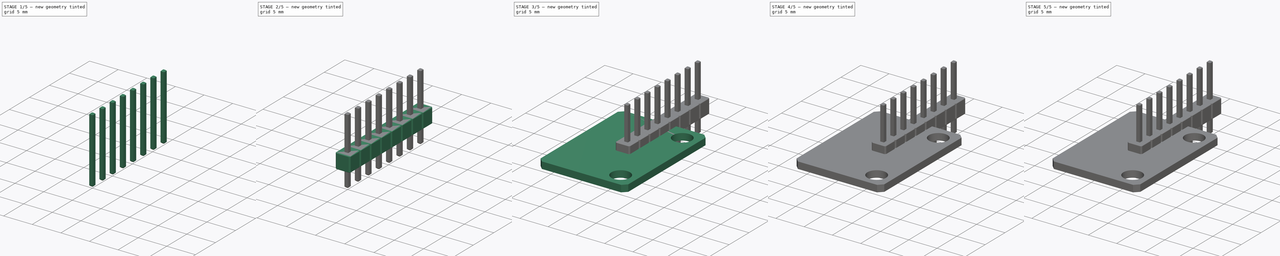
[diagram: build sequence overview — one tinted view per stage of 5, left to right]
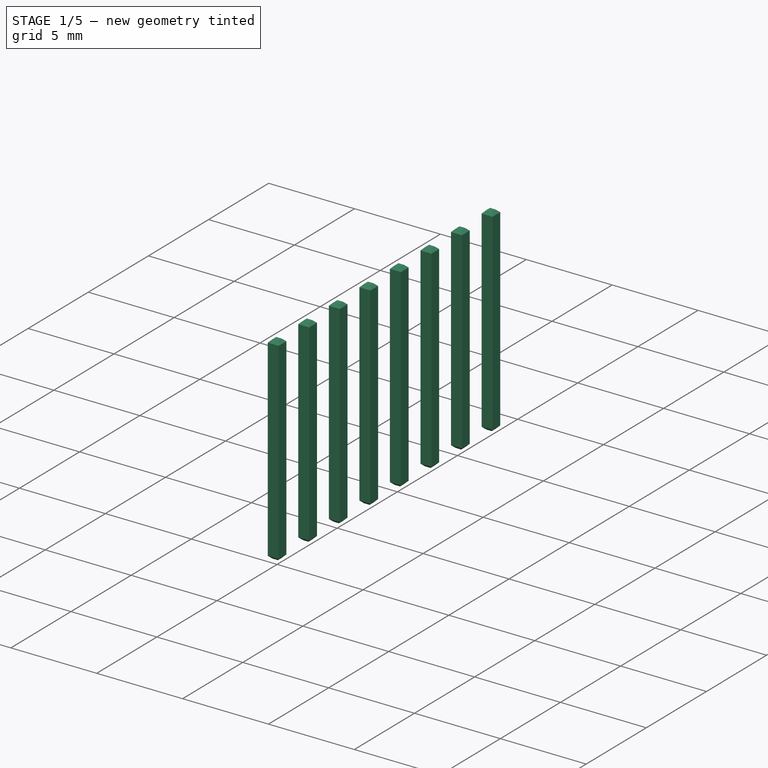
[diagram: stage 1 of 5 — iso view after this stage's code; geometry added in this stage tinted green]
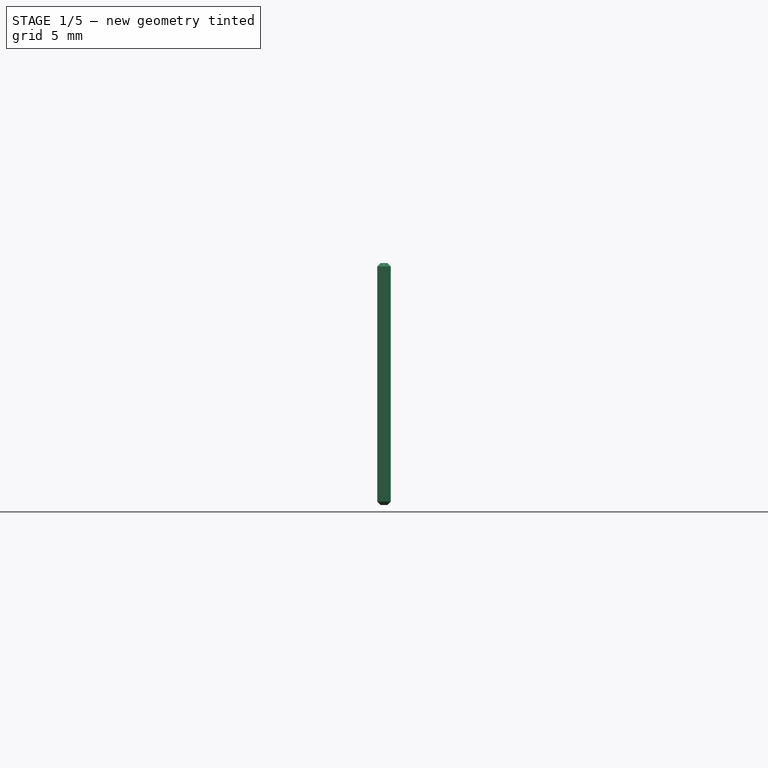
[diagram: stage 1 of 5 — front view after this stage's code; geometry added in this stage tinted green]
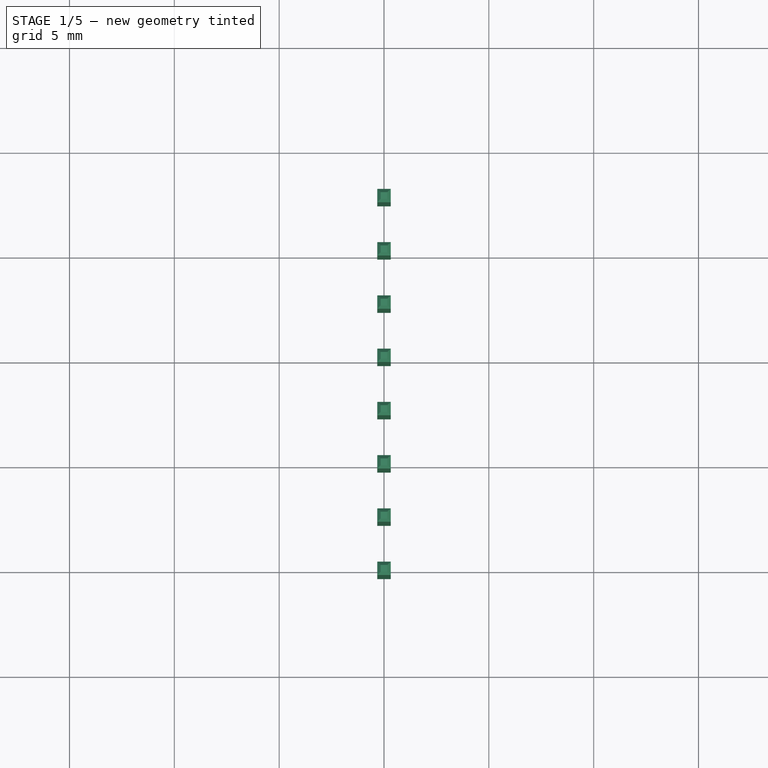
[diagram: stage 1 of 5 — top view after this stage's code; geometry added in this stage tinted green]
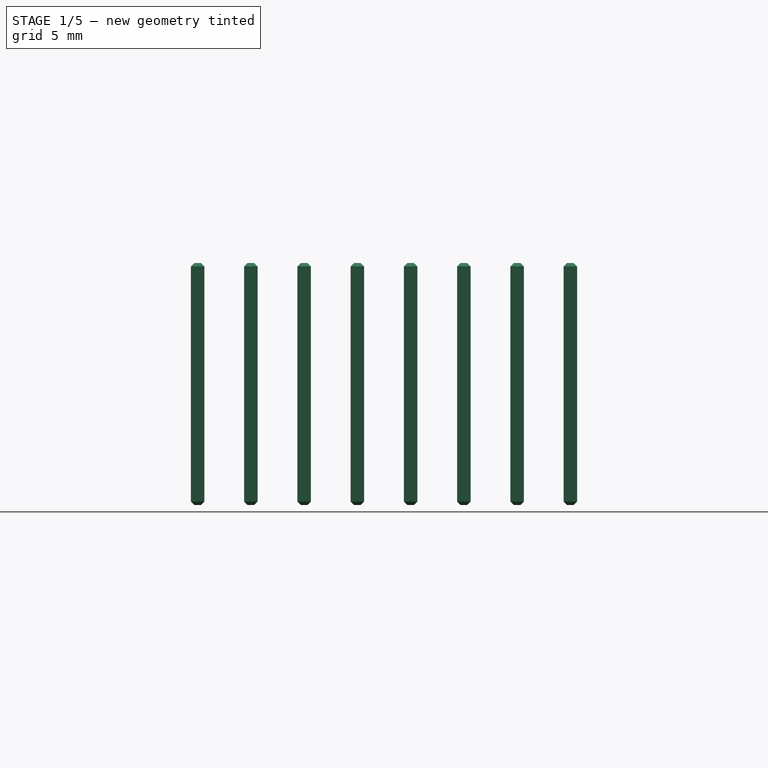
[diagram: stage 1 of 5 — right view after this stage's code; geometry added in this stage tinted green]
FCSTD DOCUMENT  (FreeCAD 0.18R4 (GitTag))
Label: GY-521
License: CreativeCommons Attribution-NonCommercial
LicenseURL: http://creativecommons.org/licenses/by-nc/4.0/
objects: Sketcher::SketchObject×7, Part::FeaturePython×6, PartDesign::Pad×5, PartDesign::Body×5, App::Part×4, PartDesign::Chamfer×4, PartDesign::Pocket×2
note: 36 computed .brp shape members not serialized (recipe doc carries the construction recipe); baked Part::Feature solids carry a one-line shape summary decoded from their .brp

FEATURE [PartDesign::Body] Body  label="GY-521 PCB"
  Group = -> [Sketch003,Pad002,Chamfer,Sketch004,Pocket001]
  Origin = -> Origin001
  Placement = pos=(0,0,-1.65) rot=(0,0,1;0rad)
  Tip = -> Pocket001
FEATURE [Sketcher::SketchObject] Sketch207
  MapMode = 5
  Placement = pos=(0,0,0) rot=(1,0,0;1.5708rad)
  Support = -> [XZ_Plane050]
  sketch-geometry (4):
    g0: LineSegment StartX=-0.32 StartY=-3 StartZ=0 EndX=0.32 EndY=-3 EndZ=0
    g1: LineSegment StartX=0.32 StartY=-3 StartZ=0 EndX=0.32 EndY=8.54 EndZ=0
    g2: LineSegment StartX=0.32 StartY=8.54 StartZ=0 EndX=-0.32 EndY=8.54 EndZ=0
    g3: LineSegment StartX=-0.32 StartY=8.54 StartZ=0 EndX=-0.32 EndY=-3 EndZ=0
  constraints (11):
    c: Coincident(g0,g1)
    c: Coincident(g1,g2)
    c: Coincident(g2,g3)
    c: Coincident(g3,g0)
    c: Horizontal(g0)
    c: Vertical(g1)
    c: Vertical(g3)
    c: DistanceY(g-1,g1) = 8.54
    c: DistanceY(g0,g-1) = 3
    c: Symmetric(g2,g1,g-2)
    c: DistanceX(g2,g2) = 0.64
FEATURE [Sketcher::SketchObject] Sketch208
  MapMode = 5
  Support = -> [XY_Plane052]
  sketch-geometry (4):
    g0: LineSegment StartX=-1.27 StartY=-1.27 StartZ=0 EndX=1.27 EndY=-1.27 EndZ=0
    g1: LineSegment StartX=1.27 StartY=-1.27 StartZ=0 EndX=1.27 EndY=1.27 EndZ=0
    g2: LineSegment StartX=1.27 StartY=1.27 StartZ=0 EndX=-1.27 EndY=1.27 EndZ=0
    g3: LineSegment StartX=-1.27 StartY=1.27 StartZ=0 EndX=-1.27 EndY=-1.27 EndZ=0
  constraints (10):
    c: Coincident(g0,g1)
    c: Coincident(g1,g2)
    c: Coincident(g2,g3)
    c: Coincident(g3,g0)
    c: Horizontal(g0)
    c: Vertical(g3)
    c: Symmetric(g1,g2,g-2)
    c: Symmetric(g0,g1,g-1)
    c: Equal(g3,g2)
    c: DistanceX(g2,g2) = 2.54
FEATURE [PartDesign::Pad] Pad062
  Length = 0.32
  Length2 = 0.32
  Placement = pos=(0,0,0) rot=(1,0,0;1.5708rad)
  Profile = -> Sketch207
  Type = 4
FEATURE [PartDesign::Chamfer] Chamfer012
  Base = -> Pad062 [Face3,Face1]
  BaseFeature = -> Pad062
  Placement = pos=(0,0,0) rot=(1,0,0;1.5708rad)
  Size = 0.16
FEATURE [Part::FeaturePython] Array002  label="Pin Pin"  # Draft array (typed FeaturePython)
  Angle = 360
  ArrayType = 0
  Axis = (0,0,1)
  Base = -> Body034
  Center = (0,0,0)
  Fuse = false
  IntervalAxis = (0,0,0)
  IntervalX = (1,0,0)
  IntervalY = (0,2.54,0)
  IntervalZ = (0,0,1)
  NumberPolar = 1
  NumberX = 1
  NumberY = 8
  NumberZ = 1
FEATURE [App::Part] Part010  label="Pin Header"
  Group = -> [Body035,Body034,Array001,Array002]
  Origin = -> Origin051
  Placement = pos=(-6.55,-8.9,-1.65) rot=(0,1,0;3.14159rad)
FEATURE [App::Part] Part  label="GY-521"
  Group = -> [Body,Part001,Part010]
  Origin = -> Origin
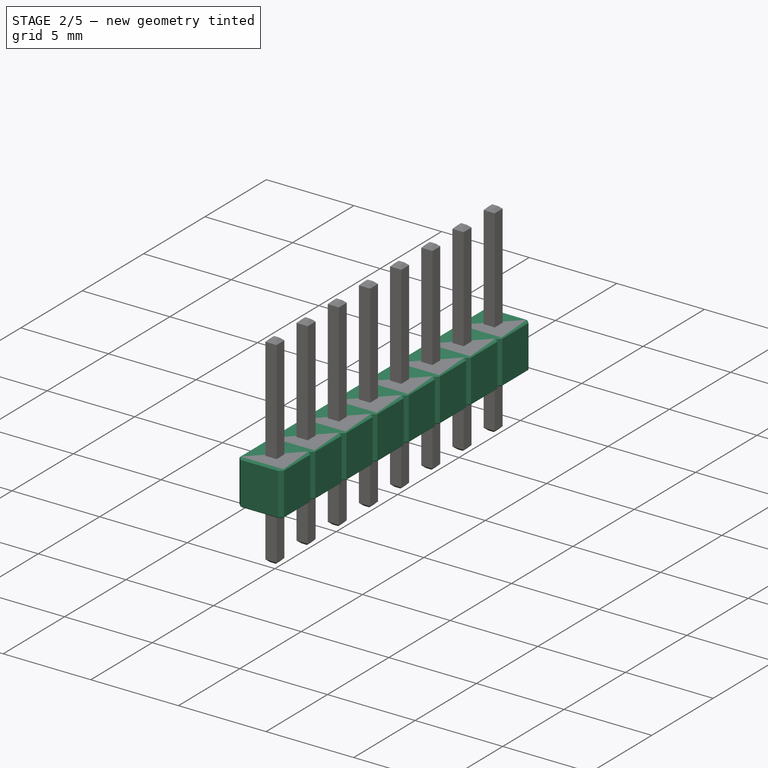
[diagram: stage 2 of 5 — iso view after this stage's code; geometry added in this stage tinted green]
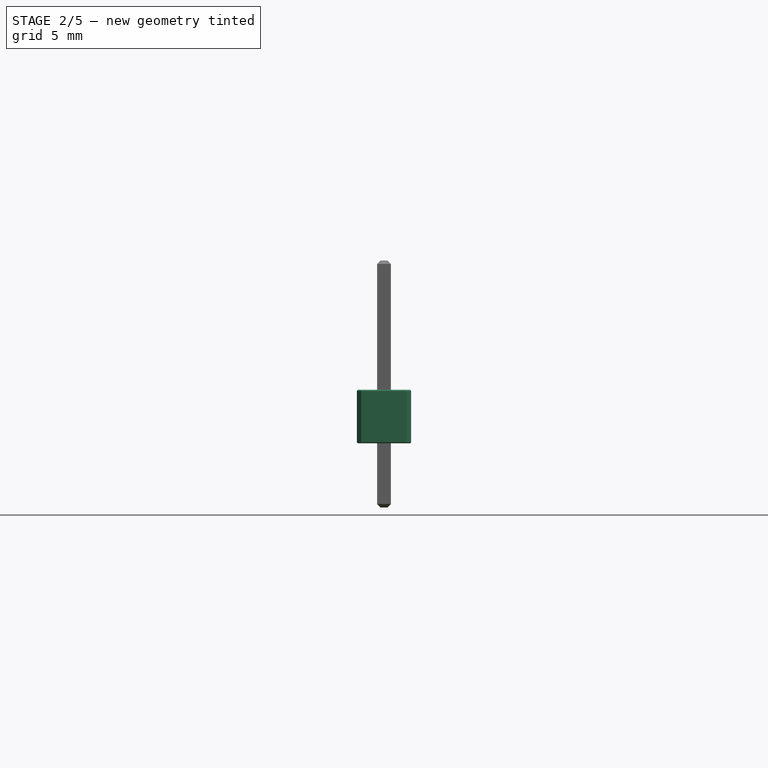
[diagram: stage 2 of 5 — front view after this stage's code; geometry added in this stage tinted green]
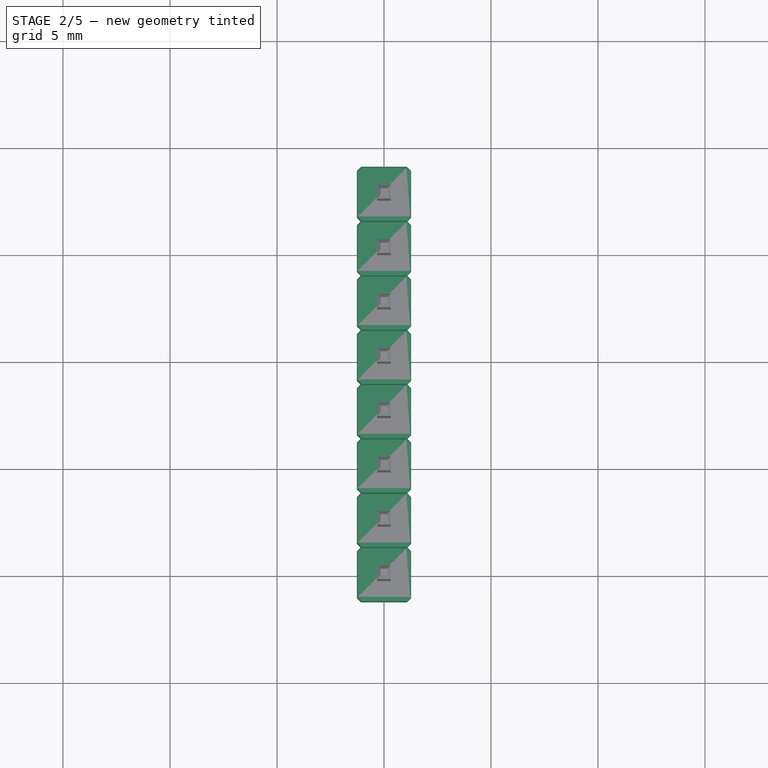
[diagram: stage 2 of 5 — top view after this stage's code; geometry added in this stage tinted green]
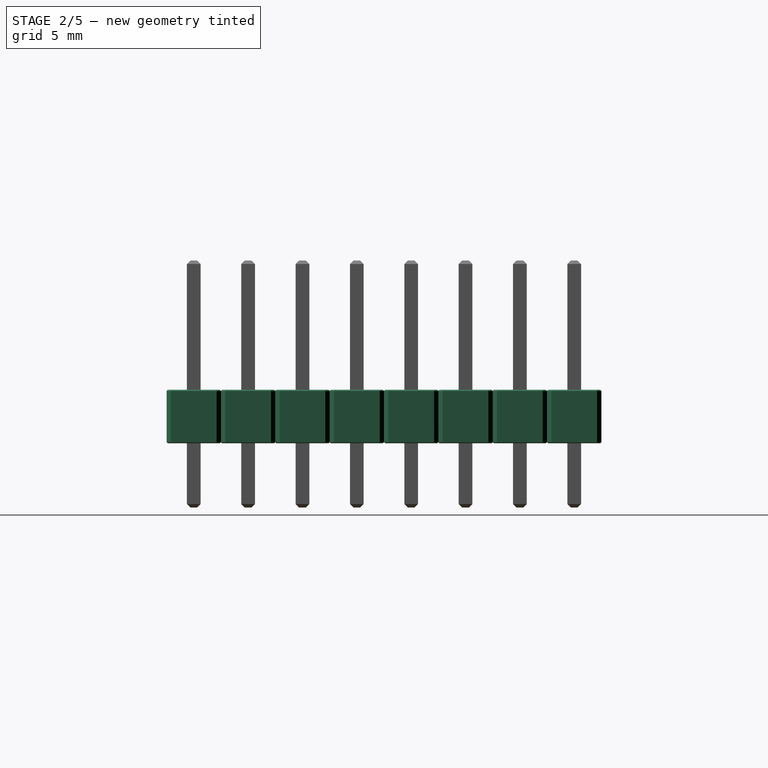
[diagram: stage 2 of 5 — right view after this stage's code; geometry added in this stage tinted green]
FEATURE [PartDesign::Body] Body034  label="Pin Header Pin001"
  Group = -> [Sketch207,Pad062,Chamfer012]
  Origin = -> Origin050
  Tip = -> Chamfer012
FEATURE [PartDesign::Pad] Pad063
  Length = 2.5
  Length2 = 100
  Profile = -> Sketch208
  Type = 0
FEATURE [PartDesign::Chamfer] Chamfer014
  Base = -> Pad063 [Edge2,Edge1,Edge5,Edge8]
  BaseFeature = -> Pad063
  Size = 0.2
FEATURE [PartDesign::Chamfer] Chamfer013
  Base = -> Chamfer014 [Face5,Face2]
  BaseFeature = -> Chamfer014
  Size = 0.05
FEATURE [PartDesign::Body] Body035  label="Pin Header Block001"
  Group = -> [Sketch208,Pad063,Chamfer014,Chamfer013]
  Origin = -> Origin052
  Tip = -> Chamfer013
FEATURE [Part::FeaturePython] Array001  label="Pin Base"  # Draft array (typed FeaturePython)
  Angle = 360
  ArrayType = 0
  Axis = (0,0,1)
  Base = -> Body035
  Center = (0,0,0)
  Fuse = false
  IntervalAxis = (0,0,0)
  IntervalX = (1,0,0)
  IntervalY = (0,2.54,0)
  IntervalZ = (0,0,1)
  NumberPolar = 1
  NumberX = 1
  NumberY = 8
  NumberZ = 1
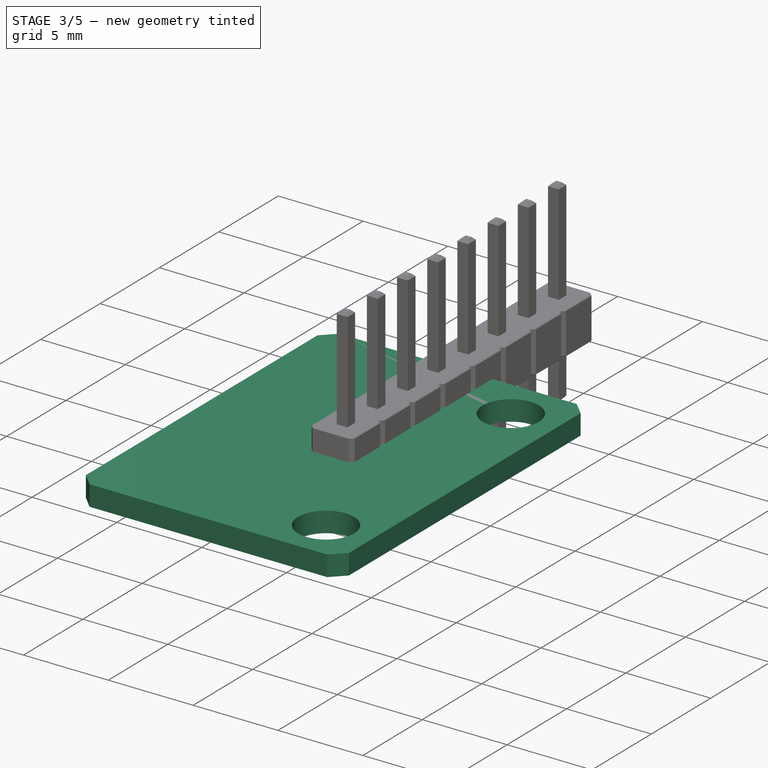
[diagram: stage 3 of 5 — iso view after this stage's code; geometry added in this stage tinted green]
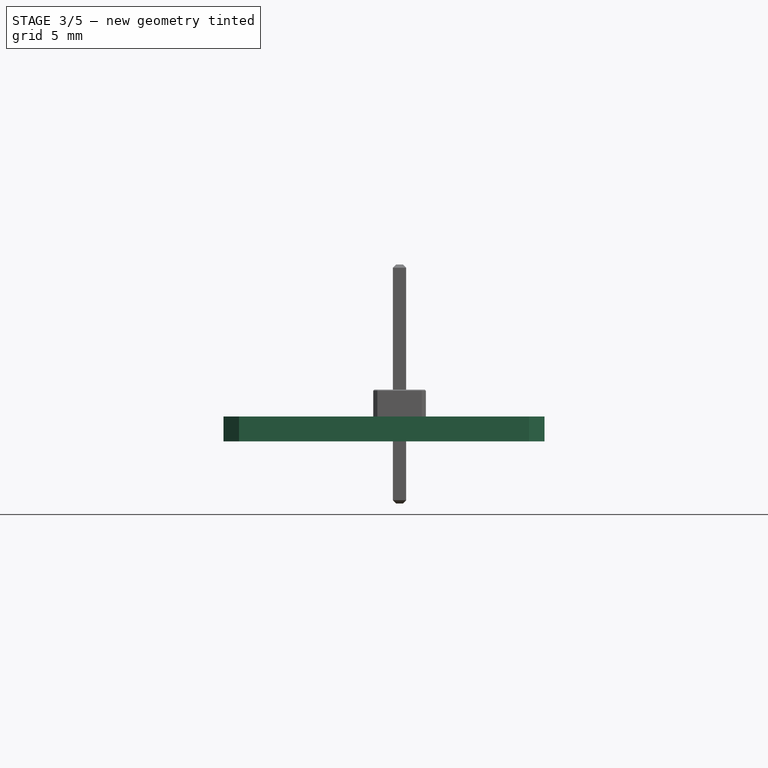
[diagram: stage 3 of 5 — front view after this stage's code; geometry added in this stage tinted green]
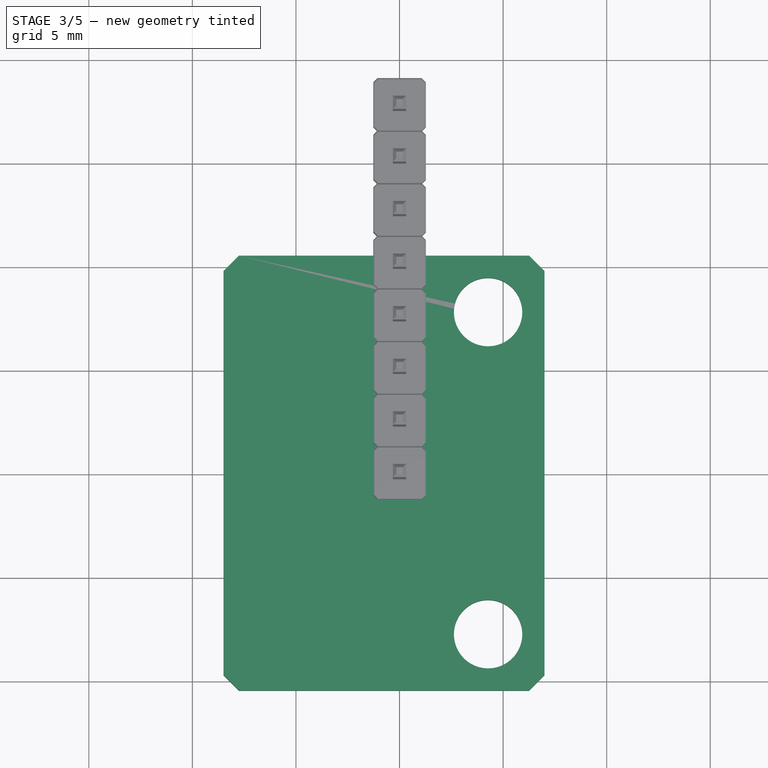
[diagram: stage 3 of 5 — top view after this stage's code; geometry added in this stage tinted green]
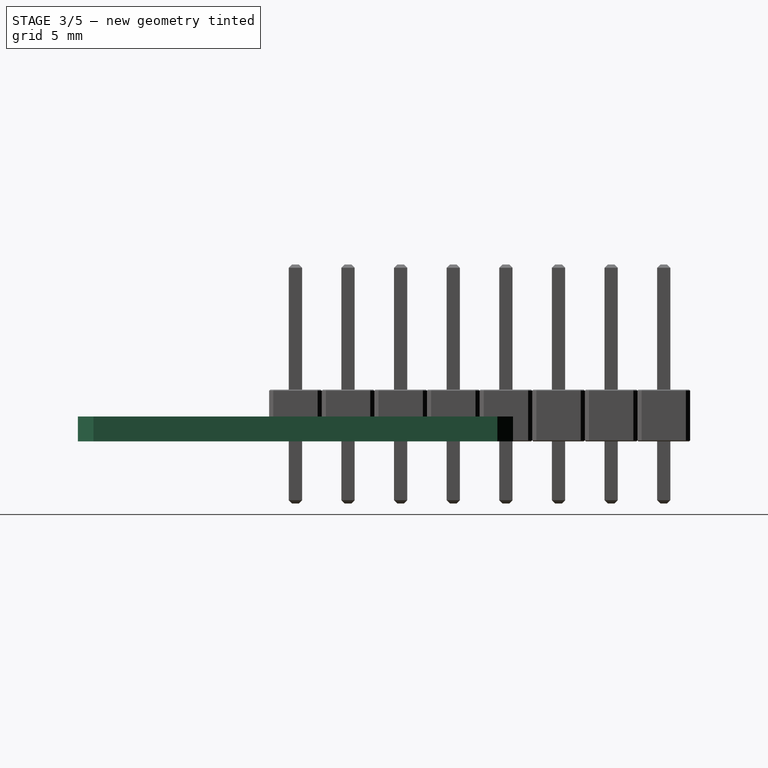
[diagram: stage 3 of 5 — right view after this stage's code; geometry added in this stage tinted green]
FEATURE [PartDesign::Body] Body001  label="MPU-6050 QFN"
  Group = -> [Sketch,Pad,Sketch002,Pocket]
  Origin = -> Origin002
  Tip = -> Pocket
FEATURE [App::Part] Part001  label="MPU-6050"
  Group = -> [Body001,Part002]
  Origin = -> Origin003
FEATURE [Sketcher::SketchObject] Sketch003
  MapMode = 5
  Support = -> [XY_Plane001]
  sketch-geometry (4):
    g0: LineSegment StartX=-8.5 StartY=10.5 StartZ=0 EndX=7 EndY=10.5 EndZ=0
    g1: LineSegment StartX=7 StartY=10.5 StartZ=0 EndX=7 EndY=-10.5 EndZ=0
    g2: LineSegment StartX=7 StartY=-10.5 StartZ=0 EndX=-8.5 EndY=-10.5 EndZ=0
    g3: LineSegment StartX=-8.5 StartY=-10.5 StartZ=0 EndX=-8.5 EndY=10.5 EndZ=0
  constraints (11):
    c: Coincident(g0,g1)
    c: Coincident(g1,g2)
    c: Coincident(g2,g3)
    c: Coincident(g3,g0)
    c: Horizontal(g0)
    c: Horizontal(g2)
    c: Vertical(g3)
    c: Symmetric(g0,g1,g-1)
    c: DistanceY(g1,g1) = 21
    c: DistanceX(g0,g0) = 15.5
    c: DistanceX(g-1,g0) = 7
FEATURE [PartDesign::Pad] Pad002
  Length = 1.2
  Length2 = 100
  Profile = -> Sketch003
  Type = 0
FEATURE [PartDesign::Chamfer] Chamfer
  Base = -> Pad002 [Edge8,Edge2,Edge5,Edge1]
  BaseFeature = -> Pad002
  Size = 0.75
FEATURE [Sketcher::SketchObject] Sketch004
  ExternalGeometry = -> [Chamfer]
  MapMode = 5
  Placement = pos=(0,0,1.2) rot=(0,0,1;0rad)
  Support = -> [Chamfer]
  sketch-geometry (3):
    g0: Circle CenterX=4.275 CenterY=7.775 CenterZ=0 NormalX=0 NormalY=0 NormalZ=1 AngleXU=0 Radius=1.65
    g1: Circle CenterX=4.275 CenterY=-7.775 CenterZ=0 NormalX=0 NormalY=0 NormalZ=1 AngleXU=0 Radius=1.65
    g2: LineSegment [constr] StartX=6.625 StartY=-10.125 StartZ=0 EndX=4.275 EndY=-7.775 EndZ=0
  constraints (7):
    c: Equal(g1,g0)
    c: Symmetric(g1,g0,g-1)
    c: Radius(g0) = 1.65
    c: DistanceY(g1,g0) = 15.55
    c: Coincident(g2,g1)
    c: Perpendicular(g-3,g2)
    c: Symmetric(g-3,g-3,g2)
FEATURE [PartDesign::Pocket] Pocket001
  BaseFeature = -> Chamfer
  Length = 5
  Length2 = 100
  Profile = -> Sketch004
  Type = 0
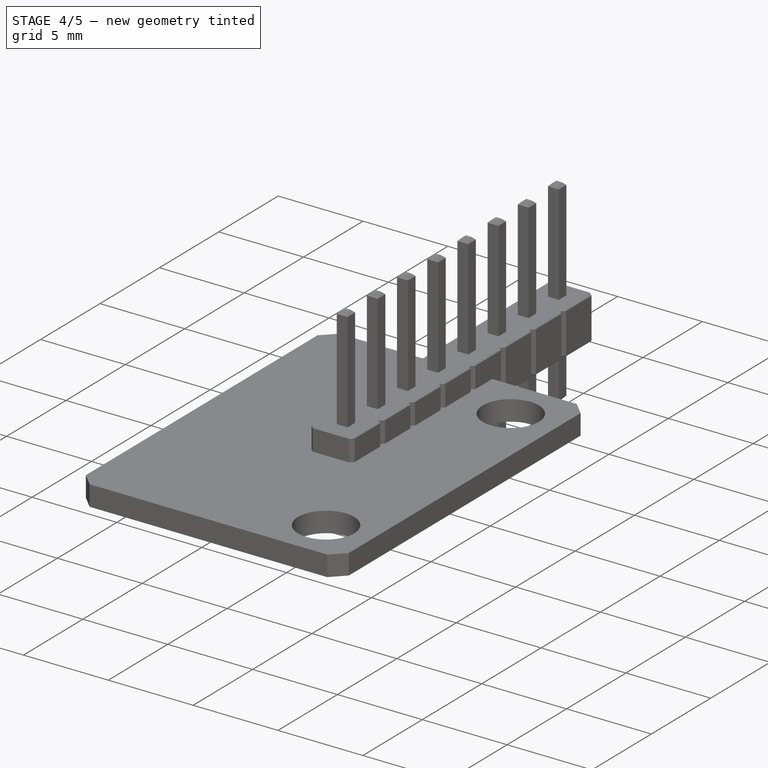
[diagram: stage 4 of 5 — iso view after this stage's code; geometry added in this stage tinted green]
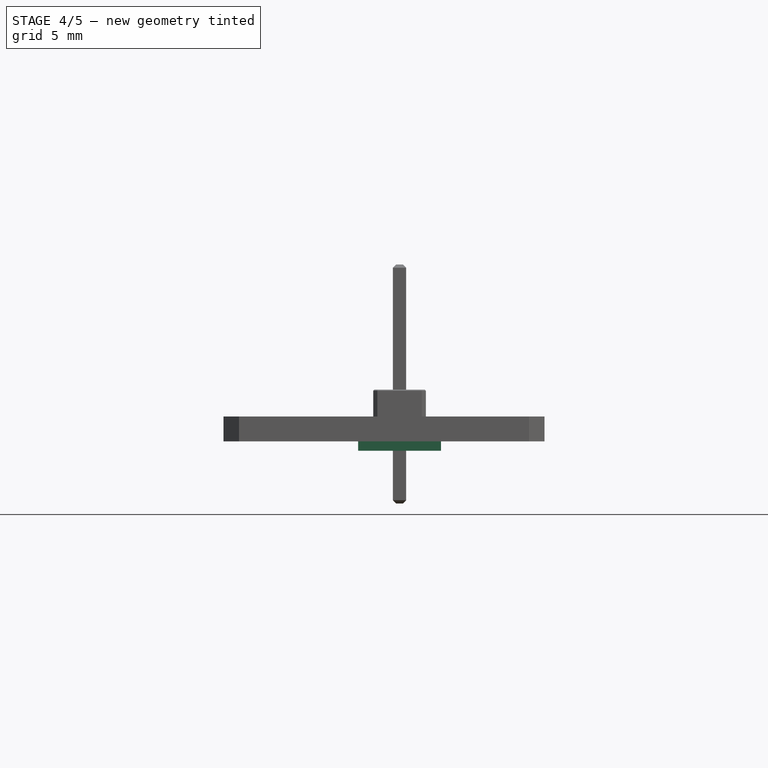
[diagram: stage 4 of 5 — front view after this stage's code; geometry added in this stage tinted green]
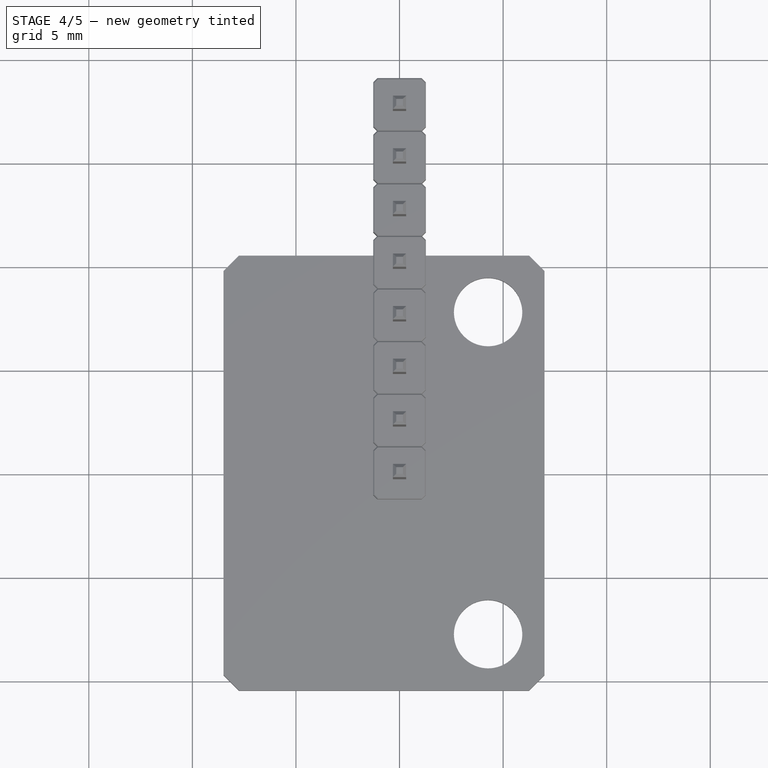
[diagram: stage 4 of 5 — top view after this stage's code; geometry added in this stage tinted green]
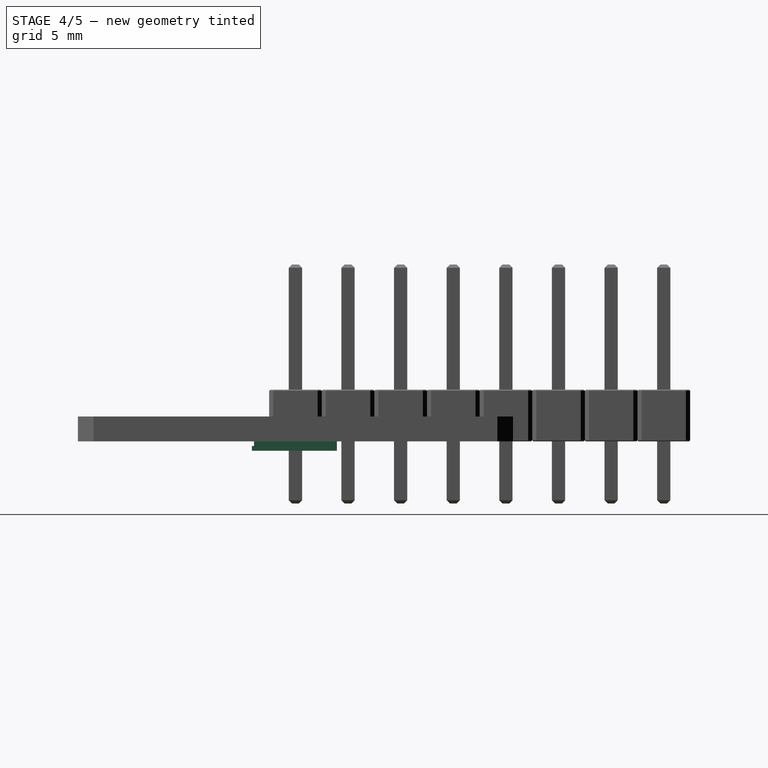
[diagram: stage 4 of 5 — right view after this stage's code; geometry added in this stage tinted green]
FEATURE [Sketcher::SketchObject] Sketch
  MapMode = 5
  Support = -> [XY_Plane002]
  sketch-geometry (4):
    g0: LineSegment StartX=-2 StartY=2 StartZ=0 EndX=2 EndY=2 EndZ=0
    g1: LineSegment StartX=2 StartY=2 StartZ=0 EndX=2 EndY=-2 EndZ=0
    g2: LineSegment StartX=2 StartY=-2 StartZ=0 EndX=-2 EndY=-2 EndZ=0
    g3: LineSegment StartX=-2 StartY=-2 StartZ=0 EndX=-2 EndY=2 EndZ=0
  constraints (10):
    c: Coincident(g0,g1)
    c: Coincident(g1,g2)
    c: Coincident(g2,g3)
    c: Coincident(g3,g0)
    c: Horizontal(g2)
    c: Vertical(g3)
    c: Equal(g0,g1)
    c: Symmetric(g0,g0,g-2)
    c: Symmetric(g0,g1,g-1)
    c: DistanceX(g0,g0) = 4
FEATURE [PartDesign::Pad] Pad
  Length = 0.45
  Length2 = 0.45
  Profile = -> Sketch
  Type = 4
FEATURE [Sketcher::SketchObject] Sketch001
  MapMode = 5
  Placement = pos=(0,0,0) rot=(1,0,0;1.5708rad)
  Support = -> [XZ_Plane004]
  sketch-geometry (4):
    g0: LineSegment StartX=-1.2375 StartY=-0.45 StartZ=0 EndX=-1.0125 EndY=-0.45 EndZ=0
    g1: LineSegment StartX=-1.0125 StartY=-0.45 StartZ=0 EndX=-1.0125 EndY=-0.225 EndZ=0
    g2: LineSegment StartX=-1.0125 StartY=-0.225 StartZ=0 EndX=-1.2375 EndY=-0.225 EndZ=0
    g3: LineSegment StartX=-1.2375 StartY=-0.225 StartZ=0 EndX=-1.2375 EndY=-0.45 EndZ=0
  constraints (12):
    c: Coincident(g0,g1)
    c: Coincident(g1,g2)
    c: Coincident(g2,g3)
    c: Coincident(g3,g0)
    c: Horizontal(g0)
    c: Horizontal(g2)
    c: Vertical(g1)
    c: Vertical(g3)
    c: Equal(g2,g1)
    c: DistanceY(g3,g3) = 0.225
    c: DistanceX(g0,g-1) = 1.2375
    c: DistanceY(g0,g-1) = 0.45
FEATURE [PartDesign::Pad] Pad001
  Length = 0.1
  Length2 = 100
  Placement = pos=(0,0,0) rot=(1,0,0;1.5708rad)
  Profile = -> Sketch001
  Type = 0
FEATURE [PartDesign::Body] Body002  label="MPU-6050 Pins"
  Group = -> [Sketch001,Pad001]
  Origin = -> Origin004
  Placement = pos=(0,-2,0) rot=(0,0,1;0rad)
  Tip = -> Pad001
FEATURE [Part::FeaturePython] Array  # Draft array (typed FeaturePython)
  Angle = 360
  ArrayType = 0
  Axis = (0,0,1)
  Base = -> Body002
  Center = (0,0,0)
  Fuse = false
  IntervalAxis = (0,0,0)
  IntervalX = (0.45,0,0)
  IntervalY = (0,1,0)
  IntervalZ = (0,0,1)
  NumberPolar = 1
  NumberX = 6
  NumberY = 1
  NumberZ = 1
FEATURE [App::Part] Part002  label="MPU-6050 Pins001"
  Group = -> [Body002,Array,Clone,Clone001,Clone002]
  Origin = -> Origin005
FEATURE [Sketcher::SketchObject] Sketch002
  MapMode = 5
  Placement = pos=(0,0,0.45) rot=(0,0,1;0rad)
  Support = -> [Pad]
  sketch-geometry (2):
    g0: Circle CenterX=-1.57331 CenterY=1.57331 CenterZ=0 NormalX=0 NormalY=0 NormalZ=1 AngleXU=0 Radius=0.225
    g1: LineSegment [constr] StartX=0 StartY=0 StartZ=0 EndX=-1.57331 EndY=1.57331 EndZ=0
  constraints (5):
    c: Radius(g0) = 0.225
    c: Coincident(g1,g-1)
    c: Coincident(g1,g0)
    c: Angle(g-2,g1) = 0.785398
    c: Distance(g1) = 2.225
FEATURE [PartDesign::Pocket] Pocket
  BaseFeature = -> Pad
  Length = 0.1
  Length2 = 100
  Profile = -> Sketch002
  Type = 0
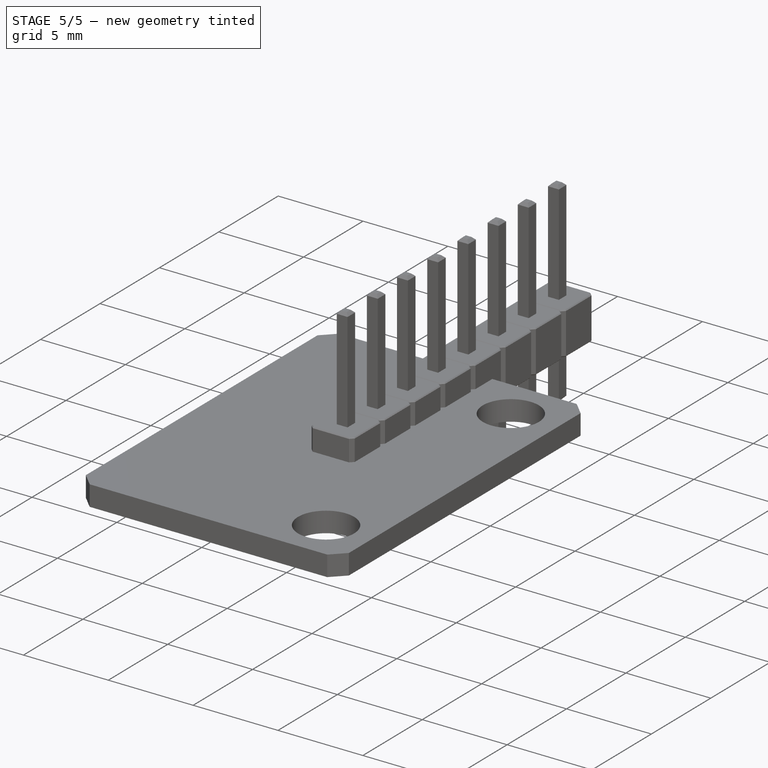
[diagram: stage 5 of 5 — iso view after this stage's code; geometry added in this stage tinted green]
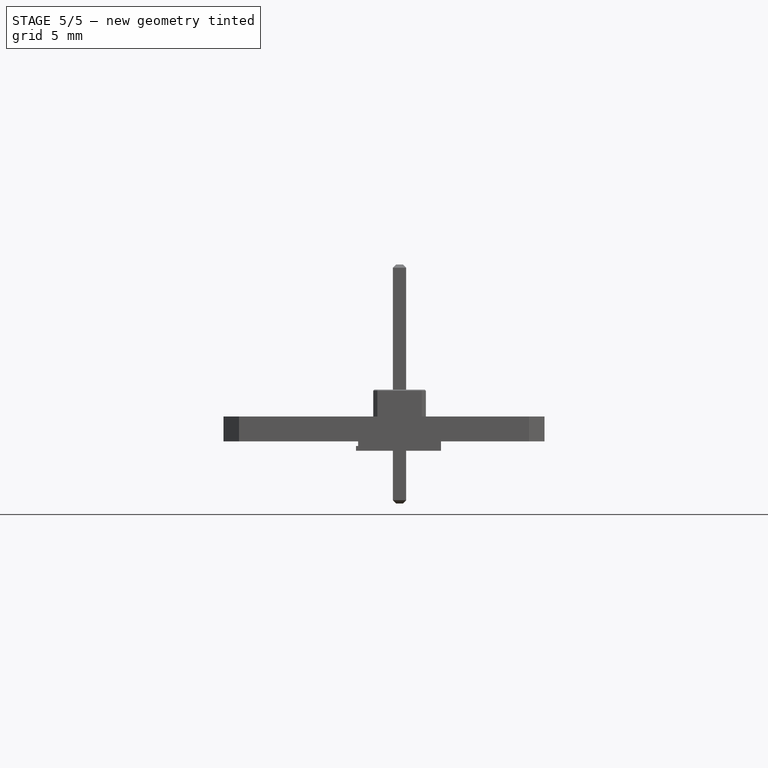
[diagram: stage 5 of 5 — front view after this stage's code; geometry added in this stage tinted green]
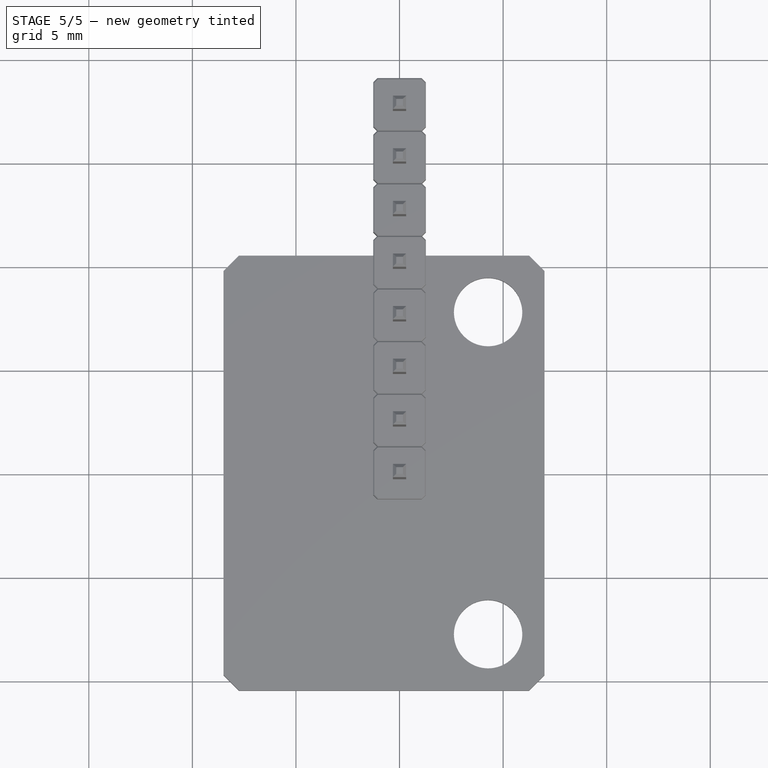
[diagram: stage 5 of 5 — top view after this stage's code; geometry added in this stage tinted green]
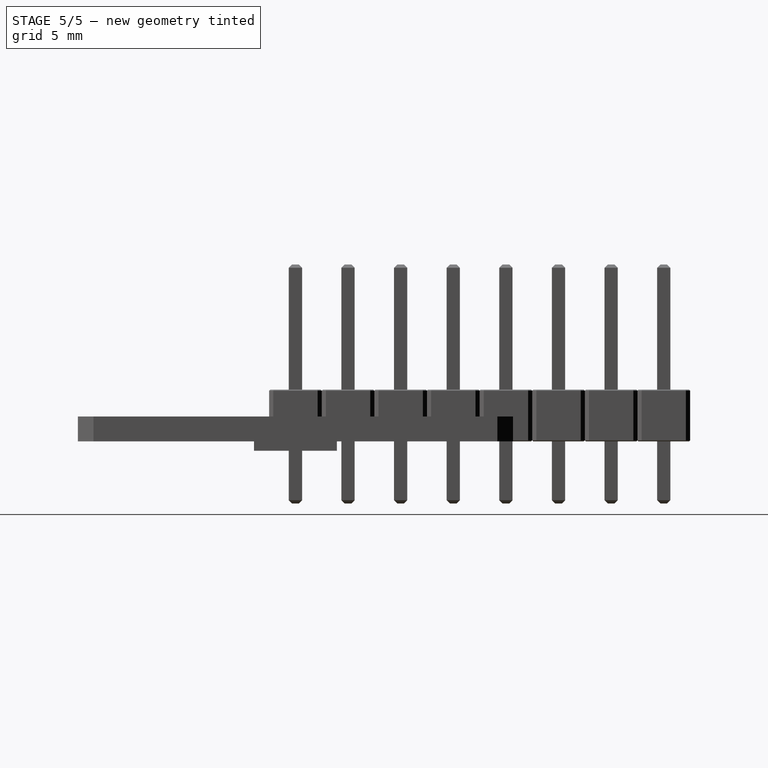
[diagram: stage 5 of 5 — right view after this stage's code; geometry added in this stage tinted green]
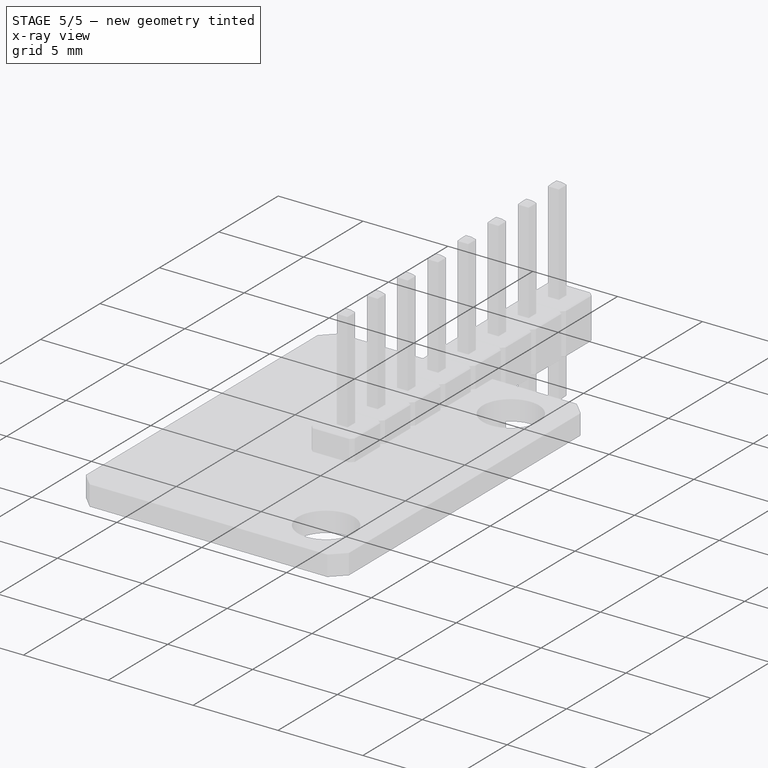
[diagram: stage 5 of 5 — x-ray composite at the iso view; earlier geometry ghosted, this stage's added geometry solid]
FEATURE [Part::FeaturePython] Clone  label="Array001"  # Draft clone (typed FeaturePython)
  AttacherType = Attacher::AttachEngine3D
  Fuse = false
  Objects = -> [Array]
  Placement = pos=(0,0,0) rot=(0,0,1;1.5708rad)
  Scale = (1,1,1)
FEATURE [Part::FeaturePython] Clone001  label="Array002"  # Draft clone (typed FeaturePython)
  AttacherType = Attacher::AttachEngine3D
  Fuse = false
  Objects = -> [Clone]
  Placement = pos=(0,0,0) rot=(0,0,1;3.14159rad)
  Scale = (1,1,1)
FEATURE [Part::FeaturePython] Clone002  label="Array003"  # Draft clone (typed FeaturePython)
  AttacherType = Attacher::AttachEngine3D
  Fuse = false
  Objects = -> [Clone001]
  Placement = pos=(0,0,0) rot=(0,0,1;4.71239rad)
  Scale = (1,1,1)
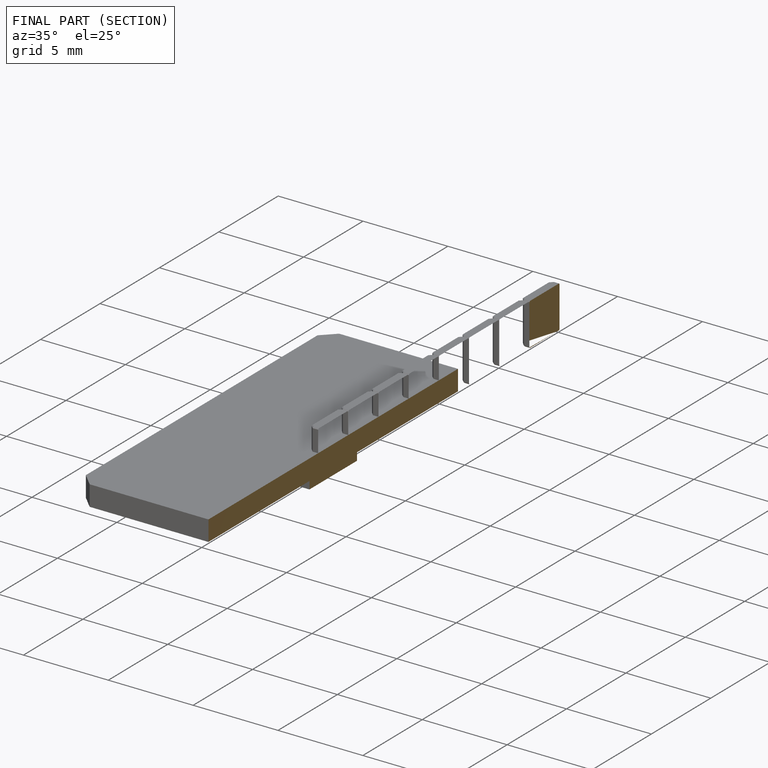
[diagram: finished part — half-section view (interior)]
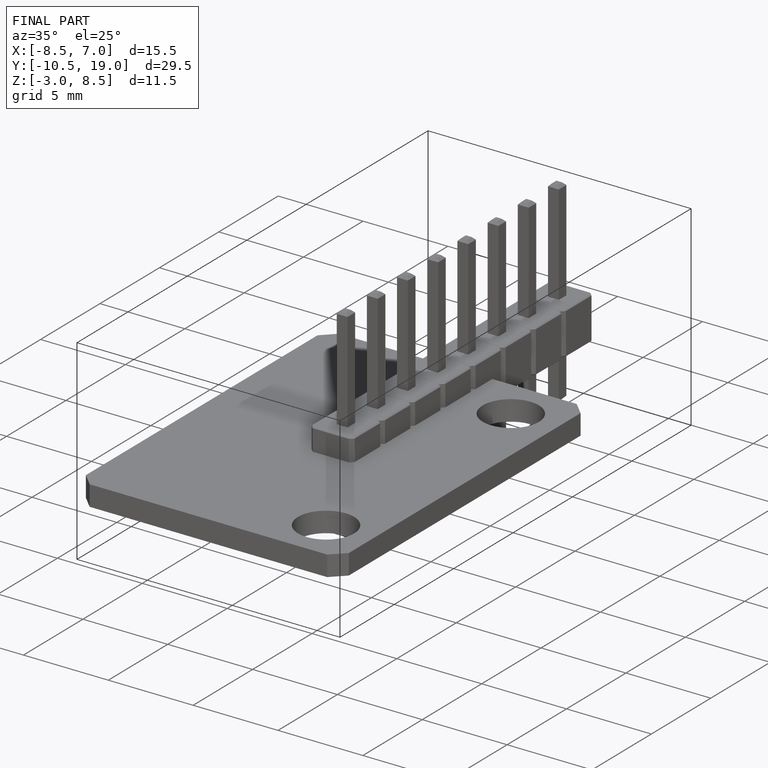
[diagram: finished part — iso view with bounding-box wireframe]
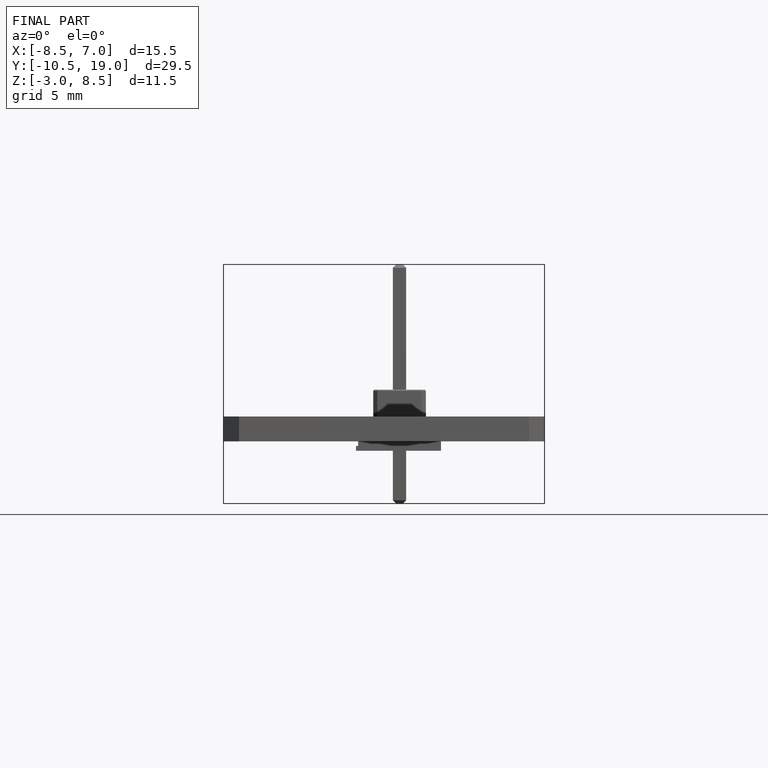
[diagram: finished part — front view with bounding-box wireframe]
